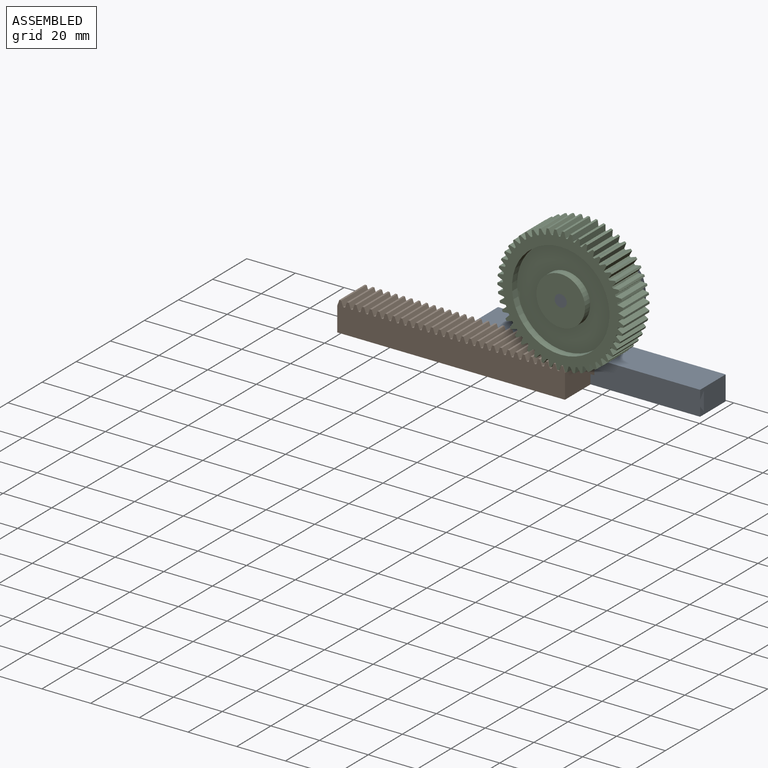
[diagram: assembled view]
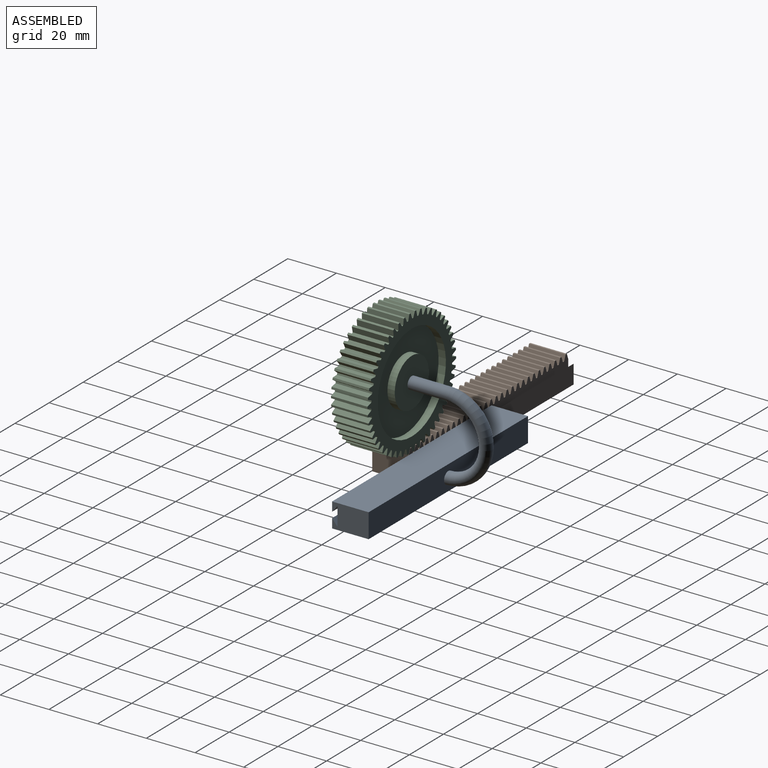
[diagram: assembled view, second angle]
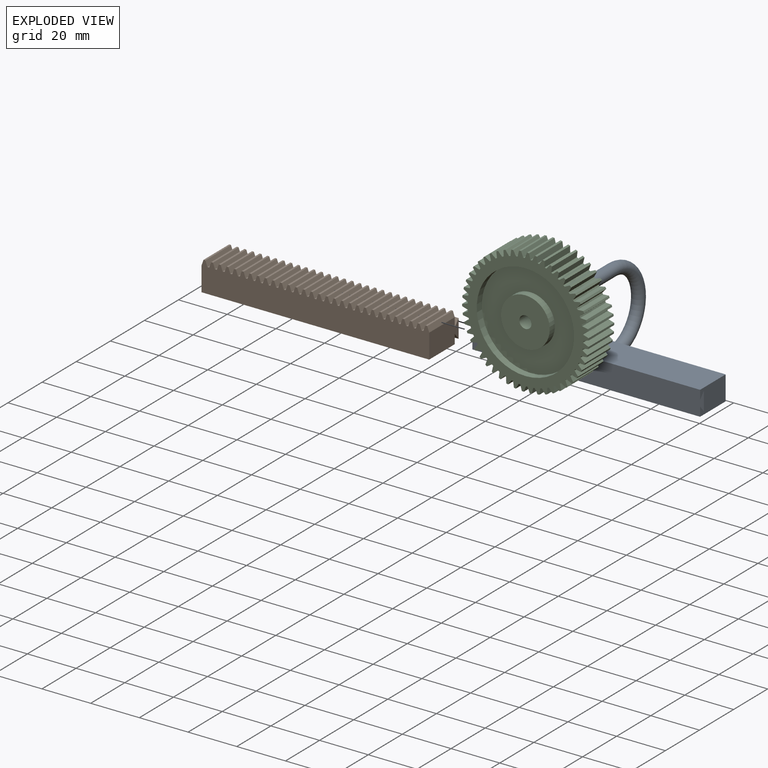
[diagram: exploded view]
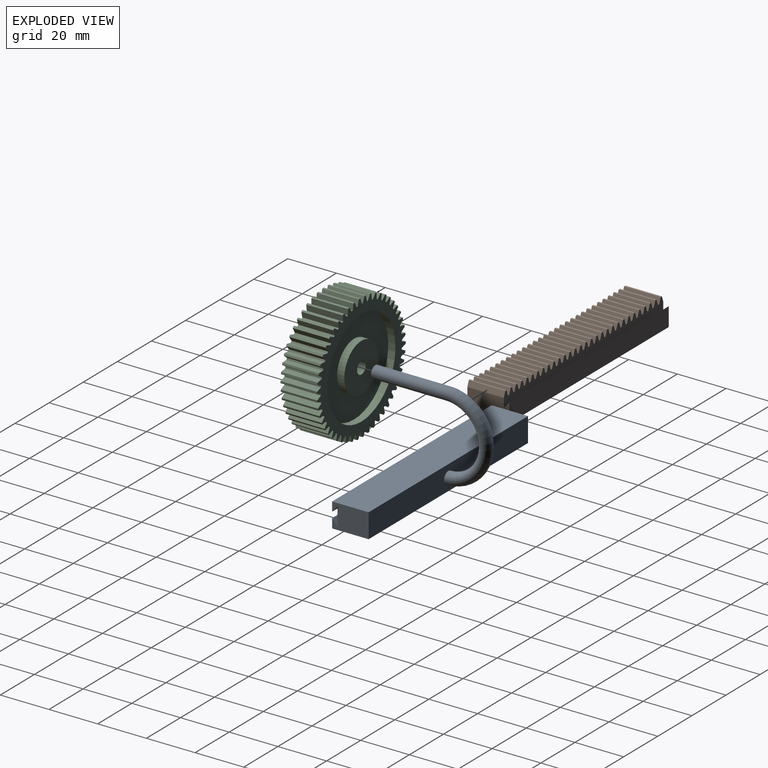
[diagram: exploded view, second angle]
ASSEMBLY  parts=3 mates=2
PART A: 13 faces, bbox 93.5x49.6x40.2 mm
  f0: plane 15x10mm, normal (1,0,0), area 138.7mm2, adj f2,f3,f4,f5,f6,f7,f8,f9
  f1: plane 15x10mm, normal (-1,0,0), area 138.7mm2, adj f2,f3,f4,f5,f6,f7,f8,f9
  f2: plane 93.5x3.81mm, normal (0,-1,0), area 356.1mm2, adj f0,f1,f4,f7
  f3: plane 93.5x15mm, normal (0,0,-1), area 1402.4mm2, adj f0,f1,f5,f6
  f4: plane 93.5x15mm, normal (0,0,1), area 1402.4mm2, adj f0,f1,f2,f6
  f5: plane 93.5x3.81mm, normal (0,-1,0), area 356.1mm2, adj f0,f1,f3,f8
  f6: plane 93.5x10mm, normal (0,1,0), area 915.3mm2, adj f0,f1,f3,f4,f11
  f7: plane 93.5x2.66mm, normal (0,0.77,-0.64), area 324.8mm2, adj f0,f1,f2,f9
  f8: plane 93.5x2.66mm, normal (0,0.77,0.64), area 324.8mm2, adj f0,f1,f5,f9
  f9: plane 93.5x7.71mm, normal (0,-1,0), area 720.5mm2, adj f0,f1,f7,f8
  f10: plane 5x5mm, normal (0,-1,0), area 19.6mm2, adj f12
  f11: torus R=15.62mm, axis (1,0,0), area 771.1mm2, adj f6,f12
  f12: cylinder r=2.5mm len=30mm, axis (0,-1,0), area 471.2mm2, adj f10,f11
PART B: 128 faces, bbox 93.5x17.2x12.3 mm
  f0: plane 93.5x6.06mm, normal (0,1,0), area 462.1mm2, adj f1,f2,f3,f4,f5,f6,f7,f8
  f1: plane 15x2.25mm, normal (-0.94,0,0.34), area 35.9mm2, adj f0,f2,f122,f123
  f2: plane 15x0.75mm, normal (0,0,1), area 11.3mm2, adj f0,f1,f3,f123
  f3: plane 15x2.25mm, normal (0.94,0,0.34), area 35.9mm2, adj f0,f2,f4,f123
  f4: plane 15x0.75mm, normal (0,0,1), area 11.3mm2, adj f0,f3,f5,f123
  f5: plane 15x2.25mm, normal (-0.94,0,0.34), area 35.9mm2, adj f0,f4,f6,f123
  f6: plane 15x0.75mm, normal (0,0,1), area 11.3mm2, adj f0,f5,f7,f123
  f7: plane 15x2.25mm, normal (0.94,0,0.34), area 35.9mm2, adj f0,f6,f8,f123
  f8: plane 15x0.75mm, normal (0,0,1), area 11.3mm2, adj f0,f7,f9,f123
  f9: plane 15x2.25mm, normal (-0.94,0,0.34), area 35.9mm2, adj f0,f8,f10,f123
  f10: plane 15x0.75mm, normal (0,0,1), area 11.3mm2, adj f0,f9,f11,f123
  f11: plane 15x2.25mm, normal (0.94,0,0.34), area 35.9mm2, adj f0,f10,f12,f123
  f12: plane 15x0.75mm, normal (0,0,1), area 11.3mm2, adj f0,f11,f13,f123
  f13: plane 15x2.25mm, normal (-0.94,0,0.34), area 35.9mm2, adj f0,f12,f14,f123
  f14: plane 15x0.75mm, normal (0,0,1), area 11.3mm2, adj f0,f13,f15,f123
  f15: plane 15x2.25mm, normal (0.94,0,0.34), area 35.9mm2, adj f0,f14,f16,f123
  f16: plane 15x0.75mm, normal (0,0,1), area 11.3mm2, adj f0,f15,f17,f123
  f17: plane 15x2.25mm, normal (-0.94,0,0.34), area 35.9mm2, adj f0,f16,f18,f123
  f18: plane 15x0.75mm, normal (0,0,1), area 11.3mm2, adj f0,f17,f19,f123
  f19: plane 15x2.25mm, normal (0.94,0,0.34), area 35.9mm2, adj f0,f18,f20,f123
  f20: plane 15x0.75mm, normal (0,0,1), area 11.3mm2, adj f0,f19,f21,f123
  f21: plane 15x2.25mm, normal (-0.94,0,0.34), area 35.9mm2, adj f0,f20,f22,f123
  f22: plane 15x0.75mm, normal (0,0,1), area 11.3mm2, adj f0,f21,f23,f123
  f23: plane 15x2.25mm, normal (0.94,0,0.34), area 35.9mm2, adj f0,f22,f24,f123
  f24: plane 15x0.75mm, normal (0,0,1), area 11.3mm2, adj f0,f23,f25,f123
  f25: plane 15x2.25mm, normal (-0.94,0,0.34), area 35.9mm2, adj f0,f24,f26,f123
  f26: plane 15x0.75mm, normal (0,0,1), area 11.3mm2, adj f0,f25,f27,f123
  f27: plane 15x2.25mm, normal (0.94,0,0.34), area 35.9mm2, adj f0,f26,f28,f123
  f28: plane 15x0.75mm, normal (0,0,1), area 11.3mm2, adj f0,f27,f29,f123
  f29: plane 15x2.25mm, normal (-0.94,0,0.34), area 35.9mm2, adj f0,f28,f30,f123
  f30: plane 15x0.75mm, normal (0,0,1), area 11.3mm2, adj f0,f29,f31,f123
  f31: plane 15x2.25mm, normal (0.94,0,0.34), area 35.9mm2, adj f0,f30,f32,f123
  f32: plane 15x0.75mm, normal (0,0,1), area 11.3mm2, adj f0,f31,f33,f123
  f33: plane 15x2.25mm, normal (-0.94,0,0.34), area 35.9mm2, adj f0,f32,f34,f123
  f34: plane 15x0.75mm, normal (0,0,1), area 11.3mm2, adj f0,f33,f35,f123
  f35: plane 15x2.25mm, normal (0.94,0,0.34), area 35.9mm2, adj f0,f34,f36,f123
  f36: plane 15x0.75mm, normal (0,0,1), area 11.3mm2, adj f0,f35,f37,f123
  f37: plane 15x2.25mm, normal (-0.94,0,0.34), area 35.9mm2, adj f0,f36,f38,f123
  f38: plane 15x0.75mm, normal (0,0,1), area 11.3mm2, adj f0,f37,f39,f123
  f39: plane 15x2.25mm, normal (0.94,0,0.34), area 35.9mm2, adj f0,f38,f40,f123
  f40: plane 15x0.75mm, normal (0,0,1), area 11.3mm2, adj f0,f39,f41,f123
  f41: plane 15x2.25mm, normal (-0.94,0,0.34), area 35.9mm2, adj f0,f40,f42,f123
  f42: plane 15x0.75mm, normal (0,0,1), area 11.3mm2, adj f0,f41,f43,f123
  f43: plane 15x2.25mm, normal (0.94,0,0.34), area 35.9mm2, adj f0,f42,f44,f123
  f44: plane 15x0.75mm, normal (0,0,1), area 11.3mm2, adj f0,f43,f45,f123
  f45: plane 15x2.25mm, normal (-0.94,0,0.34), area 35.9mm2, adj f0,f44,f46,f123
  f46: plane 15x0.75mm, normal (0,0,1), area 11.3mm2, adj f0,f45,f47,f123
  f47: plane 15x2.25mm, normal (0.94,0,0.34), area 35.9mm2, adj f0,f46,f48,f123
  f48: plane 15x0.75mm, normal (0,0,1), area 11.3mm2, adj f0,f47,f49,f123
  f49: plane 15x2.25mm, normal (-0.94,0,0.34), area 35.9mm2, adj f0,f48,f50,f123
  f50: plane 15x0.75mm, normal (0,0,1), area 11.3mm2, adj f0,f49,f51,f123
  f51: plane 15x2.25mm, normal (0.94,0,0.34), area 35.9mm2, adj f0,f50,f52,f123
  f52: plane 15x0.75mm, normal (0,0,1), area 11.3mm2, adj f0,f51,f53,f123
  f53: plane 15x2.25mm, normal (-0.94,0,0.34), area 35.9mm2, adj f0,f52,f54,f123
  f54: plane 15x0.75mm, normal (0,0,1), area 11.3mm2, adj f0,f53,f55,f123
  f55: plane 15x2.25mm, normal (0.94,0,0.34), area 35.9mm2, adj f0,f54,f56,f123
  f56: plane 15x0.75mm, normal (0,0,1), area 11.3mm2, adj f0,f55,f57,f123
  f57: plane 15x2.25mm, normal (-0.94,0,0.34), area 35.9mm2, adj f0,f56,f58,f123
  f58: plane 15x0.75mm, normal (0,0,1), area 11.3mm2, adj f0,f57,f59,f123
  f59: plane 15x2.25mm, normal (0.94,0,0.34), area 35.9mm2, adj f0,f58,f60,f123
  f60: plane 15x0.75mm, normal (0,0,1), area 11.3mm2, adj f0,f59,f61,f123
  f61: plane 15x2.25mm, normal (-0.94,0,0.34), area 35.9mm2, adj f0,f60,f62,f123
  f62: plane 15x0.75mm, normal (0,0,1), area 11.3mm2, adj f0,f61,f63,f123
  f63: plane 15x2.25mm, normal (0.94,0,0.34), area 35.9mm2, adj f0,f62,f64,f123
  f64: plane 15x0.75mm, normal (0,0,1), area 11.3mm2, adj f0,f63,f65,f123
  f65: plane 15x2.25mm, normal (-0.94,0,0.34), area 35.9mm2, adj f0,f64,f66,f123
  f66: plane 15x0.75mm, normal (0,0,1), area 11.3mm2, adj f0,f65,f67,f123
  f67: plane 15x2.25mm, normal (0.94,0,0.34), area 35.9mm2, adj f0,f66,f68,f123
  f68: plane 15x0.75mm, normal (0,0,1), area 11.3mm2, adj f0,f67,f69,f123
  f69: plane 15x2.25mm, normal (-0.94,0,0.34), area 35.9mm2, adj f0,f68,f70,f123
  f70: plane 17.23x10mm, normal (-1,0,0), area 161.3mm2, adj f0,f69,f71,f123,f124,f125,f126,f127
  f71: plane 93.5x15mm, normal (0,0,-1), area 1402.4mm2, adj f70,f72,f123,f124
  f72: plane 17.23x10mm, normal (1,0,0), area 161.3mm2, adj f0,f71,f73,f123,f124,f125,f126,f127
  f73: plane 15x2.25mm, normal (0.94,0,0.34), area 35.9mm2, adj f0,f72,f74,f123
  f74: plane 15x0.75mm, normal (0,0,1), area 11.3mm2, adj f0,f73,f75,f123
  f75: plane 15x2.25mm, normal (-0.94,0,0.34), area 35.9mm2, adj f0,f74,f76,f123
  f76: plane 15x0.75mm, normal (0,0,1), area 11.3mm2, adj f0,f75,f77,f123
  f77: plane 15x2.25mm, normal (0.94,0,0.34), area 35.9mm2, adj f0,f76,f78,f123
  f78: plane 15x0.75mm, normal (0,0,1), area 11.3mm2, adj f0,f77,f79,f123
  f79: plane 15x2.25mm, normal (-0.94,0,0.34), area 35.9mm2, adj f0,f78,f80,f123
  f80: plane 15x0.75mm, normal (0,0,1), area 11.3mm2, adj f0,f79,f81,f123
  f81: plane 15x2.25mm, normal (0.94,0,0.34), area 35.9mm2, adj f0,f80,f82,f123
  f82: plane 15x0.75mm, normal (0,0,1), area 11.3mm2, adj f0,f81,f83,f123
  f83: plane 15x2.25mm, normal (-0.94,0,0.34), area 35.9mm2, adj f0,f82,f84,f123
  f84: plane 15x0.75mm, normal (0,0,1), area 11.3mm2, adj f0,f83,f85,f123
  f85: plane 15x2.25mm, normal (0.94,0,0.34), area 35.9mm2, adj f0,f84,f86,f123
  f86: plane 15x0.75mm, normal (0,0,1), area 11.3mm2, adj f0,f85,f87,f123
  f87: plane 15x2.25mm, normal (-0.94,0,0.34), area 35.9mm2, adj f0,f86,f88,f123
  f88: plane 15x0.75mm, normal (0,0,1), area 11.3mm2, adj f0,f87,f89,f123
  f89: plane 15x2.25mm, normal (0.94,0,0.34), area 35.9mm2, adj f0,f88,f90,f123
  f90: plane 15x0.75mm, normal (0,0,1), area 11.3mm2, adj f0,f89,f91,f123
  f91: plane 15x2.25mm, normal (-0.94,0,0.34), area 35.9mm2, adj f0,f90,f92,f123
  f92: plane 15x0.75mm, normal (0,0,1), area 11.3mm2, adj f0,f91,f93,f123
  f93: plane 15x2.25mm, normal (0.94,0,0.34), area 35.9mm2, adj f0,f92,f94,f123
  f94: plane 15x0.75mm, normal (0,0,1), area 11.3mm2, adj f0,f93,f95,f123
  f95: plane 15x2.25mm, normal (-0.94,0,0.34), area 35.9mm2, adj f0,f94,f96,f123
  f96: plane 15x0.75mm, normal (0,0,1), area 11.3mm2, adj f0,f95,f97,f123
  f97: plane 15x2.25mm, normal (0.94,0,0.34), area 35.9mm2, adj f0,f96,f98,f123
  f98: plane 15x0.75mm, normal (0,0,1), area 11.3mm2, adj f0,f97,f99,f123
  f99: plane 15x2.25mm, normal (-0.94,0,0.34), area 35.9mm2, adj f0,f98,f100,f123
  f100: plane 15x0.75mm, normal (0,0,1), area 11.3mm2, adj f0,f99,f101,f123
  f101: plane 15x2.25mm, normal (0.94,0,0.34), area 35.9mm2, adj f0,f100,f102,f123
  f102: plane 15x0.75mm, normal (0,0,1), area 11.3mm2, adj f0,f101,f103,f123
  f103: plane 15x2.25mm, normal (-0.94,0,0.34), area 35.9mm2, adj f0,f102,f104,f123
  f104: plane 15x0.75mm, normal (0,0,1), area 11.3mm2, adj f0,f103,f105,f123
  f105: plane 15x2.25mm, normal (0.94,0,0.34), area 35.9mm2, adj f0,f104,f106,f123
  f106: plane 15x0.75mm, normal (0,0,1), area 11.3mm2, adj f0,f105,f107,f123
  f107: plane 15x2.25mm, normal (-0.94,0,0.34), area 35.9mm2, adj f0,f106,f108,f123
  f108: plane 15x0.75mm, normal (0,0,1), area 11.3mm2, adj f0,f107,f109,f123
  f109: plane 15x2.25mm, normal (0.94,0,0.34), area 35.9mm2, adj f0,f108,f110,f123
  f110: plane 15x0.75mm, normal (0,0,1), area 11.3mm2, adj f0,f109,f111,f123
  f111: plane 15x2.25mm, normal (-0.94,0,0.34), area 35.9mm2, adj f0,f110,f112,f123
  f112: plane 15x0.75mm, normal (0,0,1), area 11.3mm2, adj f0,f111,f113,f123
  f113: plane 15x2.25mm, normal (0.94,0,0.34), area 35.9mm2, adj f0,f112,f114,f123
  f114: plane 15x0.75mm, normal (0,0,1), area 11.3mm2, adj f0,f113,f115,f123
  f115: plane 15x2.25mm, normal (-0.94,0,0.34), area 35.9mm2, adj f0,f114,f116,f123
  f116: plane 15x0.75mm, normal (0,0,1), area 11.3mm2, adj f0,f115,f117,f123
  f117: plane 15x2.25mm, normal (0.94,0,0.34), area 35.9mm2, adj f0,f116,f118,f123
  f118: plane 15x0.75mm, normal (0,0,1), area 11.3mm2, adj f0,f117,f119,f123
  f119: plane 15x2.25mm, normal (-0.94,0,0.34), area 35.9mm2, adj f0,f118,f120,f123
  f120: plane 15x0.75mm, normal (0,0,1), area 11.3mm2, adj f0,f119,f121,f123
  f121: plane 15x2.25mm, normal (0.94,0,0.34), area 35.9mm2, adj f0,f120,f122,f123
  f122: plane 15x0.75mm, normal (0,0,1), area 11.3mm2, adj f0,f1,f121,f123
  f123: plane 93.5x12.25mm, normal (0,-1,0), area 1041mm2, adj f1,f2,f3,f4,f5,f6,f7,f8
  f124: plane 93.5x3.81mm, normal (0,1,0), area 356.1mm2, adj f70,f71,f72,f126
  f125: plane 93.5x2.66mm, normal (0,-0.77,0.64), area 324.8mm2, adj f0,f70,f72,f127
  f126: plane 93.5x2.66mm, normal (0,-0.77,-0.64), area 324.8mm2, adj f70,f72,f124,f127
  f127: plane 93.5x7.71mm, normal (0,1,0), area 720.5mm2, adj f70,f72,f125,f126
PART C: 211 faces, bbox 51.9x15x52 mm
  f0: plane 20x20mm, normal (0,-1,0), area 294.5mm2, adj f204,f208
  f1: plane 20x20mm, normal (0,1,0), area 294.5mm2, adj f204,f205
  f2: plane 15x2.22mm, normal (-0.36,0,0.93), area 35.7mm2, adj f3,f201,f202,f203
  f3: cylinder r=26mm len=15mm, axis (0,1,0), area 12.3mm2, adj f2,f4,f202,f203
  f4: plane 15x2.32mm, normal (-0.27,0,-0.96), area 36.1mm2, adj f3,f5,f202,f203
  f5: cylinder r=23.75mm len=15mm, axis (0,1,0), area 10mm2, adj f4,f6,f202,f203
  f6: plane 15x2.1mm, normal (-0.47,0,0.88), area 35.7mm2, adj f5,f7,f202,f203
  f7: cylinder r=26mm len=15mm, axis (0,1,0), area 12.3mm2, adj f6,f8,f202,f203
  f8: plane 15x2.38mm, normal (-0.14,0,-0.99), area 36.1mm2, adj f7,f9,f202,f203
  f9: cylinder r=23.75mm len=15mm, axis (0,1,0), area 10mm2, adj f8,f10,f202,f203
  f10: plane 15x1.94mm, normal (-0.58,0,0.82), area 35.7mm2, adj f9,f11,f202,f203
  f11: cylinder r=26mm len=15mm, axis (0,1,0), area 12.3mm2, adj f10,f12,f202,f203
  f12: plane 15x2.41mm, normal (-0.02,0,-1), area 36.1mm2, adj f11,f13,f202,f203
  f13: cylinder r=23.75mm len=15mm, axis (0,1,0), area 10mm2, adj f12,f14,f202,f203
  f14: plane 15x1.76mm, normal (-0.68,0,0.74), area 35.7mm2, adj f13,f15,f202,f203
  f15: cylinder r=26mm len=15mm, axis (0,1,0), area 12.3mm2, adj f14,f16,f202,f203
  f16: plane 15x2.4mm, normal (0.11,0,-0.99), area 36.1mm2, adj f15,f17,f202,f203
  f17: cylinder r=23.75mm len=15mm, axis (0,1,0), area 10mm2, adj f16,f18,f202,f203
  f18: plane 15x1.82mm, normal (-0.76,0,0.65), area 35.7mm2, adj f17,f19,f202,f203
  f19: cylinder r=26mm len=15mm, axis (0,1,0), area 12.3mm2, adj f18,f20,f202,f203
  f20: plane 15x2.35mm, normal (0.23,0,-0.97), area 36.1mm2, adj f19,f21,f202,f203
  f21: cylinder r=23.75mm len=15mm, axis (0,1,0), area 10mm2, adj f20,f22,f202,f203
  f22: plane 15x1.99mm, normal (-0.84,0,0.55), area 35.7mm2, adj f21,f23,f202,f203
  f23: cylinder r=26mm len=15mm, axis (0,1,0), area 12.3mm2, adj f22,f24,f202,f203
  f24: plane 15x2.26mm, normal (0.35,0,-0.94), area 36.1mm2, adj f23,f25,f202,f203
  f25: cylinder r=23.75mm len=15mm, axis (0,1,0), area 10mm2, adj f24,f26,f202,f203
  f26: plane 15x2.14mm, normal (-0.9,0,0.44), area 35.7mm2, adj f25,f27,f202,f203
  f27: cylinder r=26mm len=15mm, axis (0,1,0), area 12.3mm2, adj f26,f28,f202,f203
  f28: plane 15x2.13mm, normal (0.46,0,-0.89), area 36.1mm2, adj f27,f29,f202,f203
  f29: cylinder r=23.75mm len=15mm, axis (0,1,0), area 10mm2, adj f28,f30,f202,f203
  f30: plane 15x2.26mm, normal (-0.95,0,0.32), area 35.7mm2, adj f29,f31,f202,f203
  f31: cylinder r=26mm len=15mm, axis (0,1,0), area 12.3mm2, adj f30,f32,f202,f203
  f32: plane 15x1.98mm, normal (0.57,0,-0.82), area 36.1mm2, adj f31,f33,f202,f203
  f33: cylinder r=23.75mm len=15mm, axis (0,1,0), area 10mm2, adj f32,f34,f202,f203
  f34: plane 15x2.33mm, normal (-0.98,0,0.2), area 35.7mm2, adj f33,f35,f202,f203
  f35: cylinder r=26mm len=15mm, axis (0,1,0), area 12.3mm2, adj f34,f36,f202,f203
  f36: plane 15x1.79mm, normal (0.67,0,-0.74), area 36.1mm2, adj f35,f37,f202,f203
  f37: cylinder r=23.75mm len=15mm, axis (0,1,0), area 10mm2, adj f36,f38,f202,f203
  f38: plane 15x2.37mm, normal (-1,0,0.07), area 35.7mm2, adj f37,f39,f202,f203
  f39: cylinder r=26mm len=15mm, axis (0,1,0), area 12.3mm2, adj f38,f40,f202,f203
  f40: plane 15x1.83mm, normal (0.76,0,-0.65), area 36.1mm2, adj f39,f41,f202,f203
  f41: cylinder r=23.75mm len=15mm, axis (0,1,0), area 10mm2, adj f40,f42,f202,f203
  f42: plane 15x2.38mm, normal (-1,0,-0.05), area 35.7mm2, adj f41,f43,f202,f203
  f43: cylinder r=26mm len=15mm, axis (0,1,0), area 12.3mm2, adj f42,f44,f202,f203
  f44: plane 15x2.01mm, normal (0.83,0,-0.55), area 36.1mm2, adj f43,f45,f202,f203
  f45: cylinder r=23.75mm len=15mm, axis (0,1,0), area 10mm2, adj f44,f46,f202,f203
  f46: plane 15x2.34mm, normal (-0.98,0,-0.18), area 35.7mm2, adj f45,f47,f202,f203
  f47: cylinder r=26mm len=15mm, axis (0,1,0), area 12.3mm2, adj f46,f48,f202,f203
  f48: plane 15x2.16mm, normal (0.9,0,-0.44), area 36.1mm2, adj f47,f49,f202,f203
  f49: cylinder r=23.75mm len=15mm, axis (0,1,0), area 10mm2, adj f48,f50,f202,f203
  f50: plane 15x2.27mm, normal (-0.95,0,-0.3), area 35.7mm2, adj f49,f51,f202,f203
  f51: cylinder r=26mm len=15mm, axis (0,1,0), area 12.3mm2, adj f50,f52,f202,f203
  f52: plane 15x2.28mm, normal (0.94,0,-0.33), area 36.1mm2, adj f51,f53,f202,f203
  f53: cylinder r=23.75mm len=15mm, axis (0,1,0), area 10mm2, adj f52,f54,f202,f203
  f54: plane 15x2.17mm, normal (-0.91,0,-0.41), area 35.7mm2, adj f53,f55,f202,f203
  f55: cylinder r=26mm len=15mm, axis (0,1,0), area 12.3mm2, adj f54,f56,f202,f203
  f56: plane 15x2.36mm, normal (0.98,0,-0.21), area 36.1mm2, adj f55,f57,f202,f203
  f57: cylinder r=23.75mm len=15mm, axis (0,1,0), area 10mm2, adj f56,f58,f202,f203
  f58: plane 15x2.03mm, normal (-0.85,0,-0.53), area 35.7mm2, adj f57,f59,f202,f203
  f59: cylinder r=26mm len=15mm, axis (0,1,0), area 12.3mm2, adj f58,f60,f202,f203
  f60: plane 15x2.4mm, normal (1,0,-0.08), area 36.1mm2, adj f59,f61,f202,f203
  f61: cylinder r=23.75mm len=15mm, axis (0,1,0), area 10mm2, adj f60,f62,f202,f203
  f62: plane 15x1.85mm, normal (-0.78,0,-0.63), area 35.7mm2, adj f61,f63,f202,f203
  f63: cylinder r=26mm len=15mm, axis (0,1,0), area 12.3mm2, adj f62,f64,f202,f203
  f64: plane 15x2.41mm, normal (1,0,0.04), area 36.1mm2, adj f63,f65,f202,f203
  f65: cylinder r=23.75mm len=15mm, axis (0,1,0), area 10mm2, adj f64,f66,f202,f203
  f66: plane 15x1.72mm, normal (-0.69,0,-0.72), area 35.7mm2, adj f65,f67,f202,f203
  f67: cylinder r=26mm len=15mm, axis (0,1,0), area 12.3mm2, adj f66,f68,f202,f203
  f68: plane 15x2.38mm, normal (0.99,0,0.17), area 36.1mm2, adj f67,f69,f202,f203
  f69: cylinder r=23.75mm len=15mm, axis (0,1,0), area 10mm2, adj f68,f70,f202,f203
  f70: plane 15x1.91mm, normal (-0.6,0,-0.8), area 35.7mm2, adj f69,f71,f202,f203
  f71: cylinder r=26mm len=15mm, axis (0,1,0), area 12.3mm2, adj f70,f72,f202,f203
  f72: plane 15x2.31mm, normal (0.96,0,0.29), area 36.1mm2, adj f71,f73,f202,f203
  f73: cylinder r=23.75mm len=15mm, axis (0,1,0), area 10mm2, adj f72,f74,f202,f203
  f74: plane 15x2.07mm, normal (-0.49,0,-0.87), area 35.7mm2, adj f73,f75,f202,f203
  f75: cylinder r=26mm len=15mm, axis (0,1,0), area 12.3mm2, adj f74,f76,f202,f203
  f76: plane 15x2.2mm, normal (0.91,0,0.41), area 36.1mm2, adj f75,f77,f202,f203
  f77: cylinder r=23.75mm len=15mm, axis (0,1,0), area 10mm2, adj f76,f78,f202,f203
  f78: plane 15x2.2mm, normal (-0.38,0,-0.93), area 35.7mm2, adj f77,f79,f202,f203
  f79: cylinder r=26mm len=15mm, axis (0,1,0), area 12.3mm2, adj f78,f80,f202,f203
  f80: plane 15x2.06mm, normal (0.85,0,0.52), area 36.1mm2, adj f79,f81,f202,f203
  f81: cylinder r=23.75mm len=15mm, axis (0,1,0), area 10mm2, adj f80,f82,f202,f203
  f82: plane 15x2.3mm, normal (-0.26,0,-0.97), area 35.7mm2, adj f81,f83,f202,f203
  f83: cylinder r=26mm len=15mm, axis (0,1,0), area 12.3mm2, adj f82,f84,f202,f203
  f84: plane 15x1.89mm, normal (0.78,0,0.62), area 36.1mm2, adj f83,f85,f202,f203
  f85: cylinder r=23.75mm len=15mm, axis (0,1,0), area 10mm2, adj f84,f86,f202,f203
  f86: plane 15x2.36mm, normal (-0.14,0,-0.99), area 35.7mm2, adj f85,f87,f202,f203
  f87: cylinder r=26mm len=15mm, axis (0,1,0), area 12.3mm2, adj f86,f88,f202,f203
  f88: plane 15x1.72mm, normal (0.7,0,0.72), area 36.1mm2, adj f87,f89,f202,f203
  f89: cylinder r=23.75mm len=15mm, axis (0,1,0), area 10mm2, adj f88,f90,f202,f203
  f90: plane 15x2.38mm, normal (-0.01,0,-1), area 35.7mm2, adj f89,f91,f202,f203
  f91: cylinder r=26mm len=15mm, axis (0,1,0), area 12.3mm2, adj f90,f92,f202,f203
  f92: plane 15x1.92mm, normal (0.6,0,0.8), area 36.1mm2, adj f91,f93,f202,f203
  f93: cylinder r=23.75mm len=15mm, axis (0,1,0), area 10mm2, adj f92,f94,f202,f203
  f94: plane 15x2.37mm, normal (0.11,0,-0.99), area 35.7mm2, adj f93,f95,f202,f203
  f95: cylinder r=26mm len=15mm, axis (0,1,0), area 12.3mm2, adj f94,f96,f202,f203
  f96: plane 15x2.09mm, normal (0.5,0,0.87), area 36.1mm2, adj f95,f97,f202,f203
  f97: cylinder r=23.75mm len=15mm, axis (0,1,0), area 10mm2, adj f96,f98,f202,f203
  f98: plane 15x2.31mm, normal (0.24,0,-0.97), area 35.7mm2, adj f97,f99,f202,f203
  f99: cylinder r=26mm len=15mm, axis (0,1,0), area 12.3mm2, adj f98,f100,f202,f203
  f100: plane 15x2.22mm, normal (0.39,0,0.92), area 36.1mm2, adj f99,f101,f202,f203
  f101: cylinder r=23.75mm len=15mm, axis (0,1,0), area 10mm2, adj f100,f102,f202,f203
  f102: plane 15x2.22mm, normal (0.36,0,-0.93), area 35.7mm2, adj f101,f103,f202,f203
  f103: cylinder r=26mm len=15mm, axis (0,1,0), area 12.3mm2, adj f102,f104,f202,f203
  f104: plane 15x2.32mm, normal (0.27,0,0.96), area 36.1mm2, adj f103,f105,f202,f203
  f105: cylinder r=23.75mm len=15mm, axis (0,1,0), area 10mm2, adj f104,f106,f202,f203
  f106: plane 15x2.1mm, normal (0.47,0,-0.88), area 35.7mm2, adj f105,f107,f202,f203
  f107: cylinder r=26mm len=15mm, axis (0,1,0), area 12.3mm2, adj f106,f108,f202,f203
  f108: plane 15x2.38mm, normal (0.14,0,0.99), area 36.1mm2, adj f107,f109,f202,f203
  f109: cylinder r=23.75mm len=15mm, axis (0,1,0), area 10mm2, adj f108,f110,f202,f203
  f110: plane 15x1.94mm, normal (0.58,0,-0.82), area 35.7mm2, adj f109,f111,f202,f203
  f111: cylinder r=26mm len=15mm, axis (0,1,0), area 12.3mm2, adj f110,f112,f202,f203
  f112: plane 15x2.41mm, normal (0.02,0,1), area 36.1mm2, adj f111,f113,f202,f203
  f113: cylinder r=23.75mm len=15mm, axis (0,1,0), area 10mm2, adj f112,f114,f202,f203
  f114: plane 15x1.76mm, normal (0.68,0,-0.74), area 35.7mm2, adj f113,f115,f202,f203
  f115: cylinder r=26mm len=15mm, axis (0,1,0), area 12.3mm2, adj f114,f116,f202,f203
  f116: plane 15x2.4mm, normal (-0.11,0,0.99), area 36.1mm2, adj f115,f117,f202,f203
  f117: cylinder r=23.75mm len=15mm, axis (0,1,0), area 10mm2, adj f116,f118,f202,f203
  f118: plane 15x1.82mm, normal (0.76,0,-0.65), area 35.7mm2, adj f117,f119,f202,f203
  f119: cylinder r=26mm len=15mm, axis (0,1,0), area 12.3mm2, adj f118,f120,f202,f203
  f120: plane 15x2.35mm, normal (-0.23,0,0.97), area 36.1mm2, adj f119,f121,f202,f203
  f121: cylinder r=23.75mm len=15mm, axis (0,1,0), area 10mm2, adj f120,f122,f202,f203
  f122: plane 15x1.99mm, normal (0.84,0,-0.55), area 35.7mm2, adj f121,f123,f202,f203
  f123: cylinder r=26mm len=15mm, axis (0,1,0), area 12.3mm2, adj f122,f124,f202,f203
  f124: plane 15x2.26mm, normal (-0.35,0,0.94), area 36.1mm2, adj f123,f125,f202,f203
  f125: cylinder r=23.75mm len=15mm, axis (0,1,0), area 10mm2, adj f124,f126,f202,f203
  f126: plane 15x2.14mm, normal (0.9,0,-0.44), area 35.7mm2, adj f125,f127,f202,f203
  f127: cylinder r=26mm len=15mm, axis (0,1,0), area 12.3mm2, adj f126,f128,f202,f203
  f128: plane 15x2.13mm, normal (-0.46,0,0.89), area 36.1mm2, adj f127,f129,f202,f203
  f129: cylinder r=23.75mm len=15mm, axis (0,1,0), area 10mm2, adj f128,f130,f202,f203
  f130: plane 15x2.26mm, normal (0.95,0,-0.32), area 35.7mm2, adj f129,f131,f202,f203
  f131: cylinder r=26mm len=15mm, axis (0,1,0), area 12.3mm2, adj f130,f132,f202,f203
  f132: plane 15x1.98mm, normal (-0.57,0,0.82), area 36.1mm2, adj f131,f133,f202,f203
  f133: cylinder r=23.75mm len=15mm, axis (0,1,0), area 10mm2, adj f132,f134,f202,f203
  f134: plane 15x2.33mm, normal (0.98,0,-0.2), area 35.7mm2, adj f133,f135,f202,f203
  f135: cylinder r=26mm len=15mm, axis (0,1,0), area 12.3mm2, adj f134,f136,f202,f203
  f136: plane 15x1.79mm, normal (-0.67,0,0.74), area 36.1mm2, adj f135,f137,f202,f203
  f137: cylinder r=23.75mm len=15mm, axis (0,1,0), area 10mm2, adj f136,f138,f202,f203
  f138: plane 15x2.37mm, normal (1,0,-0.07), area 35.7mm2, adj f137,f139,f202,f203
  f139: cylinder r=26mm len=15mm, axis (0,1,0), area 12.3mm2, adj f138,f140,f202,f203
  f140: plane 15x1.83mm, normal (-0.76,0,0.65), area 36.1mm2, adj f139,f141,f202,f203
  f141: cylinder r=23.75mm len=15mm, axis (0,1,0), area 10mm2, adj f140,f142,f202,f203
  f142: plane 15x2.38mm, normal (1,0,0.05), area 35.7mm2, adj f141,f143,f202,f203
  f143: cylinder r=26mm len=15mm, axis (0,1,0), area 12.3mm2, adj f142,f144,f202,f203
  f144: plane 15x2.01mm, normal (-0.83,0,0.55), area 36.1mm2, adj f143,f145,f202,f203
  f145: cylinder r=23.75mm len=15mm, axis (0,1,0), area 10mm2, adj f144,f146,f202,f203
  f146: plane 15x2.34mm, normal (0.98,0,0.18), area 35.7mm2, adj f145,f147,f202,f203
  f147: cylinder r=26mm len=15mm, axis (0,1,0), area 12.3mm2, adj f146,f148,f202,f203
  f148: plane 15x2.16mm, normal (-0.9,0,0.44), area 36.1mm2, adj f147,f149,f202,f203
  f149: cylinder r=23.75mm len=15mm, axis (0,1,0), area 10mm2, adj f148,f150,f202,f203
  f150: plane 15x2.27mm, normal (0.95,0,0.3), area 35.7mm2, adj f149,f151,f202,f203
  f151: cylinder r=26mm len=15mm, axis (0,1,0), area 12.3mm2, adj f150,f152,f202,f203
  f152: plane 15x2.28mm, normal (-0.94,0,0.33), area 36.1mm2, adj f151,f153,f202,f203
  f153: cylinder r=23.75mm len=15mm, axis (0,1,0), area 10mm2, adj f152,f154,f202,f203
  f154: plane 15x2.17mm, normal (0.91,0,0.41), area 35.7mm2, adj f153,f155,f202,f203
  f155: cylinder r=26mm len=15mm, axis (0,1,0), area 12.3mm2, adj f154,f156,f202,f203
  f156: plane 15x2.36mm, normal (-0.98,0,0.21), area 36.1mm2, adj f155,f157,f202,f203
  f157: cylinder r=23.75mm len=15mm, axis (0,1,0), area 10mm2, adj f156,f158,f202,f203
  f158: plane 15x2.03mm, normal (0.85,0,0.53), area 35.7mm2, adj f157,f159,f202,f203
  f159: cylinder r=26mm len=15mm, axis (0,1,0), area 12.3mm2, adj f158,f160,f202,f203
  f160: plane 15x2.4mm, normal (-1,0,0.08), area 36.1mm2, adj f159,f161,f202,f203
  f161: cylinder r=23.75mm len=15mm, axis (0,1,0), area 10mm2, adj f160,f162,f202,f203
  f162: plane 15x1.85mm, normal (0.78,0,0.63), area 35.7mm2, adj f161,f163,f202,f203
  f163: cylinder r=26mm len=15mm, axis (0,1,0), area 12.3mm2, adj f162,f164,f202,f203
  f164: plane 15x2.41mm, normal (-1,0,-0.04), area 36.1mm2, adj f163,f165,f202,f203
  f165: cylinder r=23.75mm len=15mm, axis (0,1,0), area 10mm2, adj f164,f166,f202,f203
  f166: plane 15x1.72mm, normal (0.69,0,0.72), area 35.7mm2, adj f165,f167,f202,f203
  f167: cylinder r=26mm len=15mm, axis (0,1,0), area 12.3mm2, adj f166,f168,f202,f203
  f168: plane 15x2.38mm, normal (-0.99,0,-0.17), area 36.1mm2, adj f167,f169,f202,f203
  f169: cylinder r=23.75mm len=15mm, axis (0,1,0), area 10mm2, adj f168,f170,f202,f203
  f170: plane 15x1.91mm, normal (0.6,0,0.8), area 35.7mm2, adj f169,f171,f202,f203
  f171: cylinder r=26mm len=15mm, axis (0,1,0), area 12.3mm2, adj f170,f172,f202,f203
  f172: plane 15x2.31mm, normal (-0.96,0,-0.29), area 36.1mm2, adj f171,f173,f202,f203
  f173: cylinder r=23.75mm len=15mm, axis (0,1,0), area 10mm2, adj f172,f174,f202,f203
  f174: plane 15x2.07mm, normal (0.49,0,0.87), area 35.7mm2, adj f173,f175,f202,f203
  f175: cylinder r=26mm len=15mm, axis (0,1,0), area 12.3mm2, adj f174,f176,f202,f203
  f176: plane 15x2.2mm, normal (-0.91,0,-0.41), area 36.1mm2, adj f175,f177,f202,f203
  f177: cylinder r=23.75mm len=15mm, axis (0,1,0), area 10mm2, adj f176,f178,f202,f203
  f178: plane 15x2.2mm, normal (0.38,0,0.93), area 35.7mm2, adj f177,f179,f202,f203
  f179: cylinder r=26mm len=15mm, axis (0,1,0), area 12.3mm2, adj f178,f180,f202,f203
  f180: plane 15x2.06mm, normal (-0.85,0,-0.52), area 36.1mm2, adj f179,f181,f202,f203
  f181: cylinder r=23.75mm len=15mm, axis (0,1,0), area 10mm2, adj f180,f182,f202,f203
  f182: plane 15x2.3mm, normal (0.26,0,0.97), area 35.7mm2, adj f181,f183,f202,f203
  f183: cylinder r=26mm len=15mm, axis (0,1,0), area 12.3mm2, adj f182,f184,f202,f203
  f184: plane 15x1.89mm, normal (-0.78,0,-0.62), area 36.1mm2, adj f183,f185,f202,f203
  f185: cylinder r=23.75mm len=15mm, axis (0,1,0), area 10mm2, adj f184,f186,f202,f203
  f186: plane 15x2.36mm, normal (0.14,0,0.99), area 35.7mm2, adj f185,f187,f202,f203
  f187: cylinder r=26mm len=15mm, axis (0,1,0), area 12.3mm2, adj f186,f188,f202,f203
  f188: plane 15x1.72mm, normal (-0.7,0,-0.72), area 36.1mm2, adj f187,f189,f202,f203
  f189: cylinder r=23.75mm len=15mm, axis (0,1,0), area 10mm2, adj f188,f190,f202,f203
  f190: plane 15x2.38mm, normal (0.01,0,1), area 35.7mm2, adj f189,f191,f202,f203
  f191: cylinder r=26mm len=15mm, axis (0,1,0), area 12.3mm2, adj f190,f192,f202,f203
  f192: plane 15x1.92mm, normal (-0.6,0,-0.8), area 36.1mm2, adj f191,f193,f202,f203
  f193: cylinder r=23.75mm len=15mm, axis (0,1,0), area 10mm2, adj f192,f194,f202,f203
  f194: plane 15x2.37mm, normal (-0.11,0,0.99), area 35.7mm2, adj f193,f195,f202,f203
  f195: cylinder r=26mm len=15mm, axis (0,1,0), area 12.3mm2, adj f194,f196,f202,f203
  f196: plane 15x2.09mm, normal (-0.5,0,-0.87), area 36.1mm2, adj f195,f197,f202,f203
  f197: cylinder r=23.75mm len=15mm, axis (0,1,0), area 10mm2, adj f196,f198,f202,f203
  f198: plane 15x2.31mm, normal (-0.24,0,0.97), area 35.7mm2, adj f197,f199,f202,f203
  f199: cylinder r=26mm len=15mm, axis (0,1,0), area 12.3mm2, adj f198,f200,f202,f203
  f200: plane 15x2.22mm, normal (-0.39,0,-0.92), area 36.1mm2, adj f199,f201,f202,f203
  f201: cylinder r=23.75mm len=15mm, axis (0,1,0), area 10mm2, adj f2,f200,f202,f203
  f202: plane 52x51.94mm, normal (0,-1,0), area 691.6mm2, adj f2,f3,f4,f5,f6,f7,f8,f9
  f203: plane 52x51.94mm, normal (0,1,0), area 691.6mm2, adj f2,f3,f4,f5,f6,f7,f8,f9
  f204: cylinder r=2.5mm len=15mm, axis (0,1,0), area 235.6mm2, adj f0,f1
  f205: cylinder r=10mm len=20mm, axis (0,1,0), area 188.5mm2, adj f1,f207
  f206: cylinder r=20mm len=40mm, axis (0,1,0), area 377mm2, adj f203,f207
  f207: plane 40x40mm, normal (0,1,0), area 942.5mm2, adj f205,f206
  f208: cylinder r=10mm len=20mm, axis (0,-1,0), area 188.5mm2, adj f0,f210
  f209: cylinder r=20mm len=40mm, axis (0,-1,0), area 377mm2, adj f202,f210
  f210: plane 40x40mm, normal (0,-1,0), area 942.5mm2, adj f208,f209
PLACE A t=(0,0,-5)mm
PLACE B t=(-45,-15,-5)mm
PLACE C rot(axis=(0,1,0),103.1deg) t=(0,-15,31.25)mm
MATE revolute C.f204 <-> A.f12  axis (0,-1,0) through (0,-30,31.25)mm
MATE slider B.f70 <-> A.f1  axis (-1,0,0) through (-91.75,-12.77,0)mm
